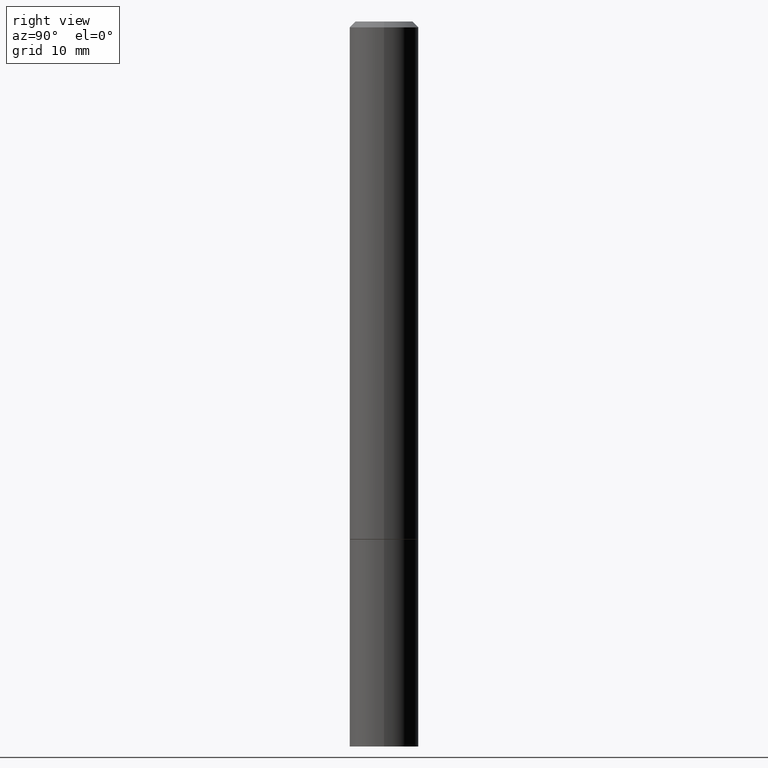
[diagram: clean part render]
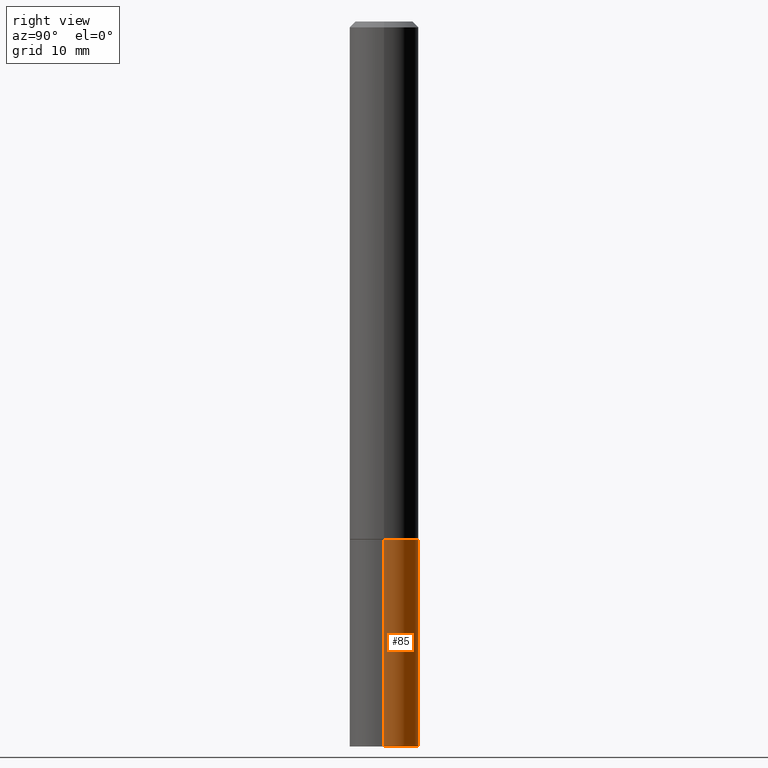
[diagram: same view with one face highlighted and labeled with its STEP entity id]
A machine part, right view. The second image highlights one B-rep face of the part: STEP entity #85.
In plain terms, the highlighted cylindrical surface (edge-blend (fillet) strip) has radius 2.9997 mm, axis along (-0, 0, 1).
Its self-contained STEP definition (entity closure, byte-faithful):
#1 = CARTESIAN_POINT ( 'NONE',  ( 4.332392537037588763E-29, -6.185508339894517569E-15, -1.771600000000000286 ) ) ;
#4 = LINE ( 'NONE', #27, #299 ) ;
#16 = ORIENTED_EDGE ( 'NONE', *, *, #249, .T. ) ;
#24 = CARTESIAN_POINT ( 'NONE',  ( 6.065496279980994755E-29, -8.659921164732655335E-15, -2.480300000000000171 ) ) ;
#25 = AXIS2_PLACEMENT_3D ( 'NONE', #1, #94, #235 ) ;
#27 = CARTESIAN_POINT ( 'NONE',  ( -0.1180999999999999966, 8.391509709326782957E-16, -5.809262341591043784E-30 ) ) ;
#44 = ORIENTED_EDGE ( 'NONE', *, *, #195, .F. ) ;
#45 = CIRCLE ( 'NONE', #25, 0.1180999999999999966 ) ;
#46 = CARTESIAN_POINT ( 'NONE',  ( 0.1180999999999999966, -7.010196232129265043E-15, -1.771600000000000286 ) ) ;
#82 = DIRECTION ( 'NONE',  ( 1.000000000000000000, -6.982962677686266711E-15, 4.876176775795936353E-29 ) ) ;
#83 = CARTESIAN_POINT ( 'NONE',  ( 0.000000000000000000, 0.000000000000000000, 0.000000000000000000 ) ) ;
#85 = ADVANCED_FACE ( 'NONE', ( #167 ), #312, .T. ) ;
#90 = CARTESIAN_POINT ( 'NONE',  ( -0.1180999999999999966, -6.583563781380907467E-15, -2.480300000000000171 ) ) ;
#94 = DIRECTION ( 'NONE',  ( -2.445468806185136597E-29, 3.491481338843145583E-15, 1.000000000000000000 ) ) ;
#104 = EDGE_CURVE ( 'NONE', #135, #132, #251, .T. ) ;
#116 = VECTOR ( 'NONE', #278, 39.37007874015748143 ) ;
#132 = VERTEX_POINT ( 'NONE', #46 ) ;
#135 = VERTEX_POINT ( 'NONE', #165 ) ;
#149 = DIRECTION ( 'NONE',  ( -2.445468806185136597E-29, 3.491481338843145583E-15, 1.000000000000000000 ) ) ;
#160 = ORIENTED_EDGE ( 'NONE', *, *, #104, .F. ) ;
#162 = VERTEX_POINT ( 'NONE', #198 ) ;
#165 = CARTESIAN_POINT ( 'NONE',  ( 0.1180999999999999966, -9.484609056967403598E-15, -2.480300000000000171 ) ) ;
#167 = FACE_OUTER_BOUND ( 'NONE', #231, .T. ) ;
#170 = CARTESIAN_POINT ( 'NONE',  ( 0.1180999999999999966, -8.246878922347480654E-16, 5.758764772215000440E-30 ) ) ;
#189 = ORIENTED_EDGE ( 'NONE', *, *, #212, .T. ) ;
#195 = EDGE_CURVE ( 'NONE', #132, #162, #45, .T. ) ;
#197 = AXIS2_PLACEMENT_3D ( 'NONE', #83, #332, #82 ) ;
#198 = CARTESIAN_POINT ( 'NONE',  ( -0.1180999999999999966, -6.583563781380907467E-15, -1.771600000000000286 ) ) ;
#212 = EDGE_CURVE ( 'NONE', #289, #162, #4, .T. ) ;
#231 = EDGE_LOOP ( 'NONE', ( #16, #189, #44, #160 ) ) ;
#232 = AXIS2_PLACEMENT_3D ( 'NONE', #24, #149, #256 ) ;
#235 = DIRECTION ( 'NONE',  ( 1.000000000000000000, -6.982962677686265133E-15, 0.000000000000000000 ) ) ;
#249 = EDGE_CURVE ( 'NONE', #135, #289, #339, .T. ) ;
#251 = LINE ( 'NONE', #170, #116 ) ;
#256 = DIRECTION ( 'NONE',  ( 1.000000000000000000, -6.982962677686273021E-15, 0.000000000000000000 ) ) ;
#278 = DIRECTION ( 'NONE',  ( -2.445468806185136877E-29, 3.491481338843145188E-15, 1.000000000000000000 ) ) ;
#288 = DIRECTION ( 'NONE',  ( -2.445468806185136877E-29, 3.491481338843145188E-15, 1.000000000000000000 ) ) ;
#289 = VERTEX_POINT ( 'NONE', #90 ) ;
#299 = VECTOR ( 'NONE', #288, 39.37007874015748143 ) ;
#312 = CYLINDRICAL_SURFACE ( 'NONE', #197, 0.1180999999999999966 ) ;
#332 = DIRECTION ( 'NONE',  ( -2.445468806185136597E-29, 3.491481338843145583E-15, 1.000000000000000000 ) ) ;
#339 = CIRCLE ( 'NONE', #232, 0.1180999999999999966 ) ;